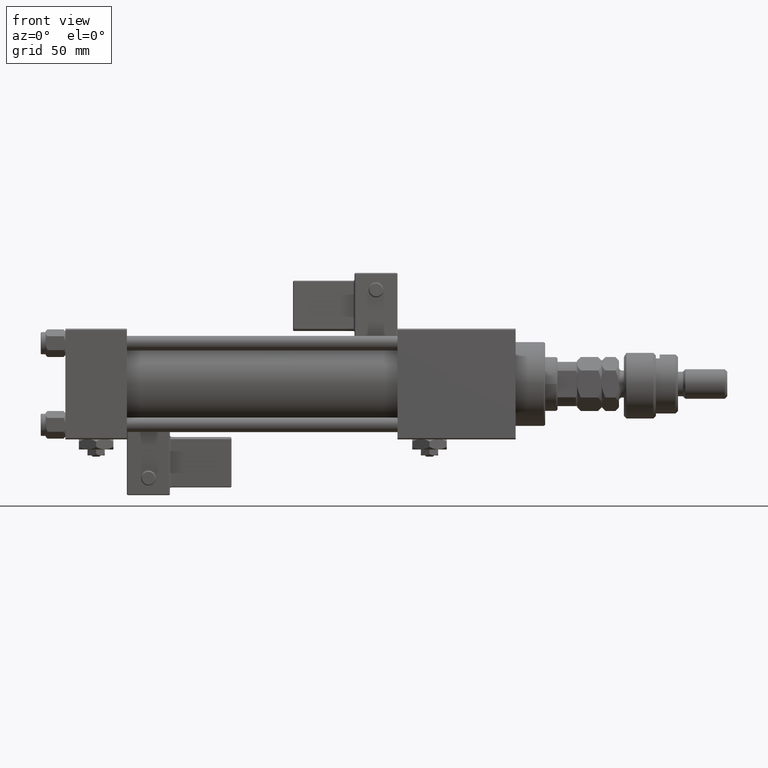
[diagram: clean part render]
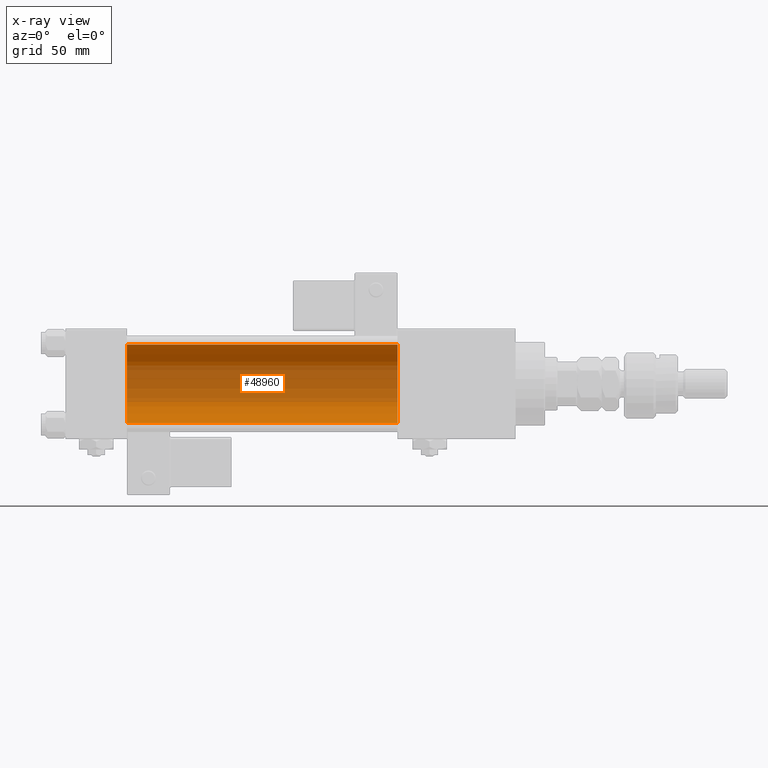
[diagram: x-ray — body ghosted, one internal face saturated and labeled with its STEP entity id]
A machine part, front view, then the same camera in x-ray: the body is ghosted and one INTERNAL B-rep face — a face not visible from any outside direction — is saturated and labeled: STEP entity #48960.
In plain terms, the highlighted cylindrical surface (partial cylindrical patch) has radius 16 mm, axis along (-1, -0, -0).
Its self-contained STEP definition (entity closure, byte-faithful):
#3155 = ORIENTED_EDGE ( 'NONE', *, *, #51305, .F. ) ;
#4341 = CARTESIAN_POINT ( 'NONE',  ( 25.00000000000000000, -6.426503353294456087E-16, -16.00000000000000000 ) ) ;
#8366 = CIRCLE ( 'NONE', #40847, 16.00000000000000000 ) ;
#11404 = VERTEX_POINT ( 'NONE', #4341 ) ;
#11771 = CARTESIAN_POINT ( 'NONE',  ( 25.00000000000000000, -2.602085213965210642E-15, 16.00000000000000000 ) ) ;
#14771 = ORIENTED_EDGE ( 'NONE', *, *, #19806, .T. ) ;
#16702 = FACE_OUTER_BOUND ( 'NONE', #30034, .T. ) ;
#18462 = CARTESIAN_POINT ( 'NONE',  ( 135.0000000000000000, -2.602085213965210642E-15, 0.000000000000000000 ) ) ;
#19314 = DIRECTION ( 'NONE',  ( 0.000000000000000000, 0.000000000000000000, -1.000000000000000000 ) ) ;
#19806 = EDGE_CURVE ( 'NONE', #49743, #22840, #38137, .T. ) ;
#19818 = CARTESIAN_POINT ( 'NONE',  ( 135.0000000000000000, -2.602085213965210642E-15, 16.00000000000000000 ) ) ;
#20745 = CARTESIAN_POINT ( 'NONE',  ( 25.00000000000000000, -2.602085213965210642E-15, 0.000000000000000000 ) ) ;
#21357 = CYLINDRICAL_SURFACE ( 'NONE', #24923, 16.00000000000000000 ) ;
#22840 = VERTEX_POINT ( 'NONE', #32007 ) ;
#24173 = LINE ( 'NONE', #19818, #42245 ) ;
#24923 = AXIS2_PLACEMENT_3D ( 'NONE', #26012, #52150, #57062 ) ;
#26012 = CARTESIAN_POINT ( 'NONE',  ( 135.0000000000000000, -2.602085213965210642E-15, 0.000000000000000000 ) ) ;
#28823 = DIRECTION ( 'NONE',  ( -1.000000000000000000, -0.000000000000000000, -0.000000000000000000 ) ) ;
#30034 = EDGE_LOOP ( 'NONE', ( #37930, #14771, #32813, #3155 ) ) ;
#32007 = CARTESIAN_POINT ( 'NONE',  ( 135.0000000000000000, -2.602085213965210642E-15, 16.00000000000000000 ) ) ;
#32813 = ORIENTED_EDGE ( 'NONE', *, *, #38982, .T. ) ;
#33265 = DIRECTION ( 'NONE',  ( 1.000000000000000000, 0.000000000000000000, 0.000000000000000000 ) ) ;
#34449 = AXIS2_PLACEMENT_3D ( 'NONE', #18462, #50413, #19314 ) ;
#37550 = CARTESIAN_POINT ( 'NONE',  ( 135.0000000000000000, -6.426503353294456087E-16, -16.00000000000000000 ) ) ;
#37665 = CARTESIAN_POINT ( 'NONE',  ( 135.0000000000000000, -6.426503353294456087E-16, -16.00000000000000000 ) ) ;
#37930 = ORIENTED_EDGE ( 'NONE', *, *, #38985, .F. ) ;
#38137 = CIRCLE ( 'NONE', #34449, 16.00000000000000000 ) ;
#38982 = EDGE_CURVE ( 'NONE', #22840, #42023, #24173, .T. ) ;
#38985 = EDGE_CURVE ( 'NONE', #49743, #11404, #54963, .T. ) ;
#40847 = AXIS2_PLACEMENT_3D ( 'NONE', #20745, #33265, #55873 ) ;
#42023 = VERTEX_POINT ( 'NONE', #11771 ) ;
#42245 = VECTOR ( 'NONE', #50342, 1000.000000000000000 ) ;
#48960 = ADVANCED_FACE ( 'NONE', ( #16702 ), #21357, .F. ) ;
#49743 = VERTEX_POINT ( 'NONE', #37665 ) ;
#50342 = DIRECTION ( 'NONE',  ( -1.000000000000000000, -0.000000000000000000, -0.000000000000000000 ) ) ;
#50413 = DIRECTION ( 'NONE',  ( 1.000000000000000000, 0.000000000000000000, 0.000000000000000000 ) ) ;
#51305 = EDGE_CURVE ( 'NONE', #11404, #42023, #8366, .T. ) ;
#52150 = DIRECTION ( 'NONE',  ( -1.000000000000000000, -0.000000000000000000, -0.000000000000000000 ) ) ;
#54963 = LINE ( 'NONE', #37550, #55230 ) ;
#55230 = VECTOR ( 'NONE', #28823, 1000.000000000000000 ) ;
#55873 = DIRECTION ( 'NONE',  ( 0.000000000000000000, 0.000000000000000000, -1.000000000000000000 ) ) ;
#57062 = DIRECTION ( 'NONE',  ( 0.000000000000000000, 0.000000000000000000, 1.000000000000000000 ) ) ;